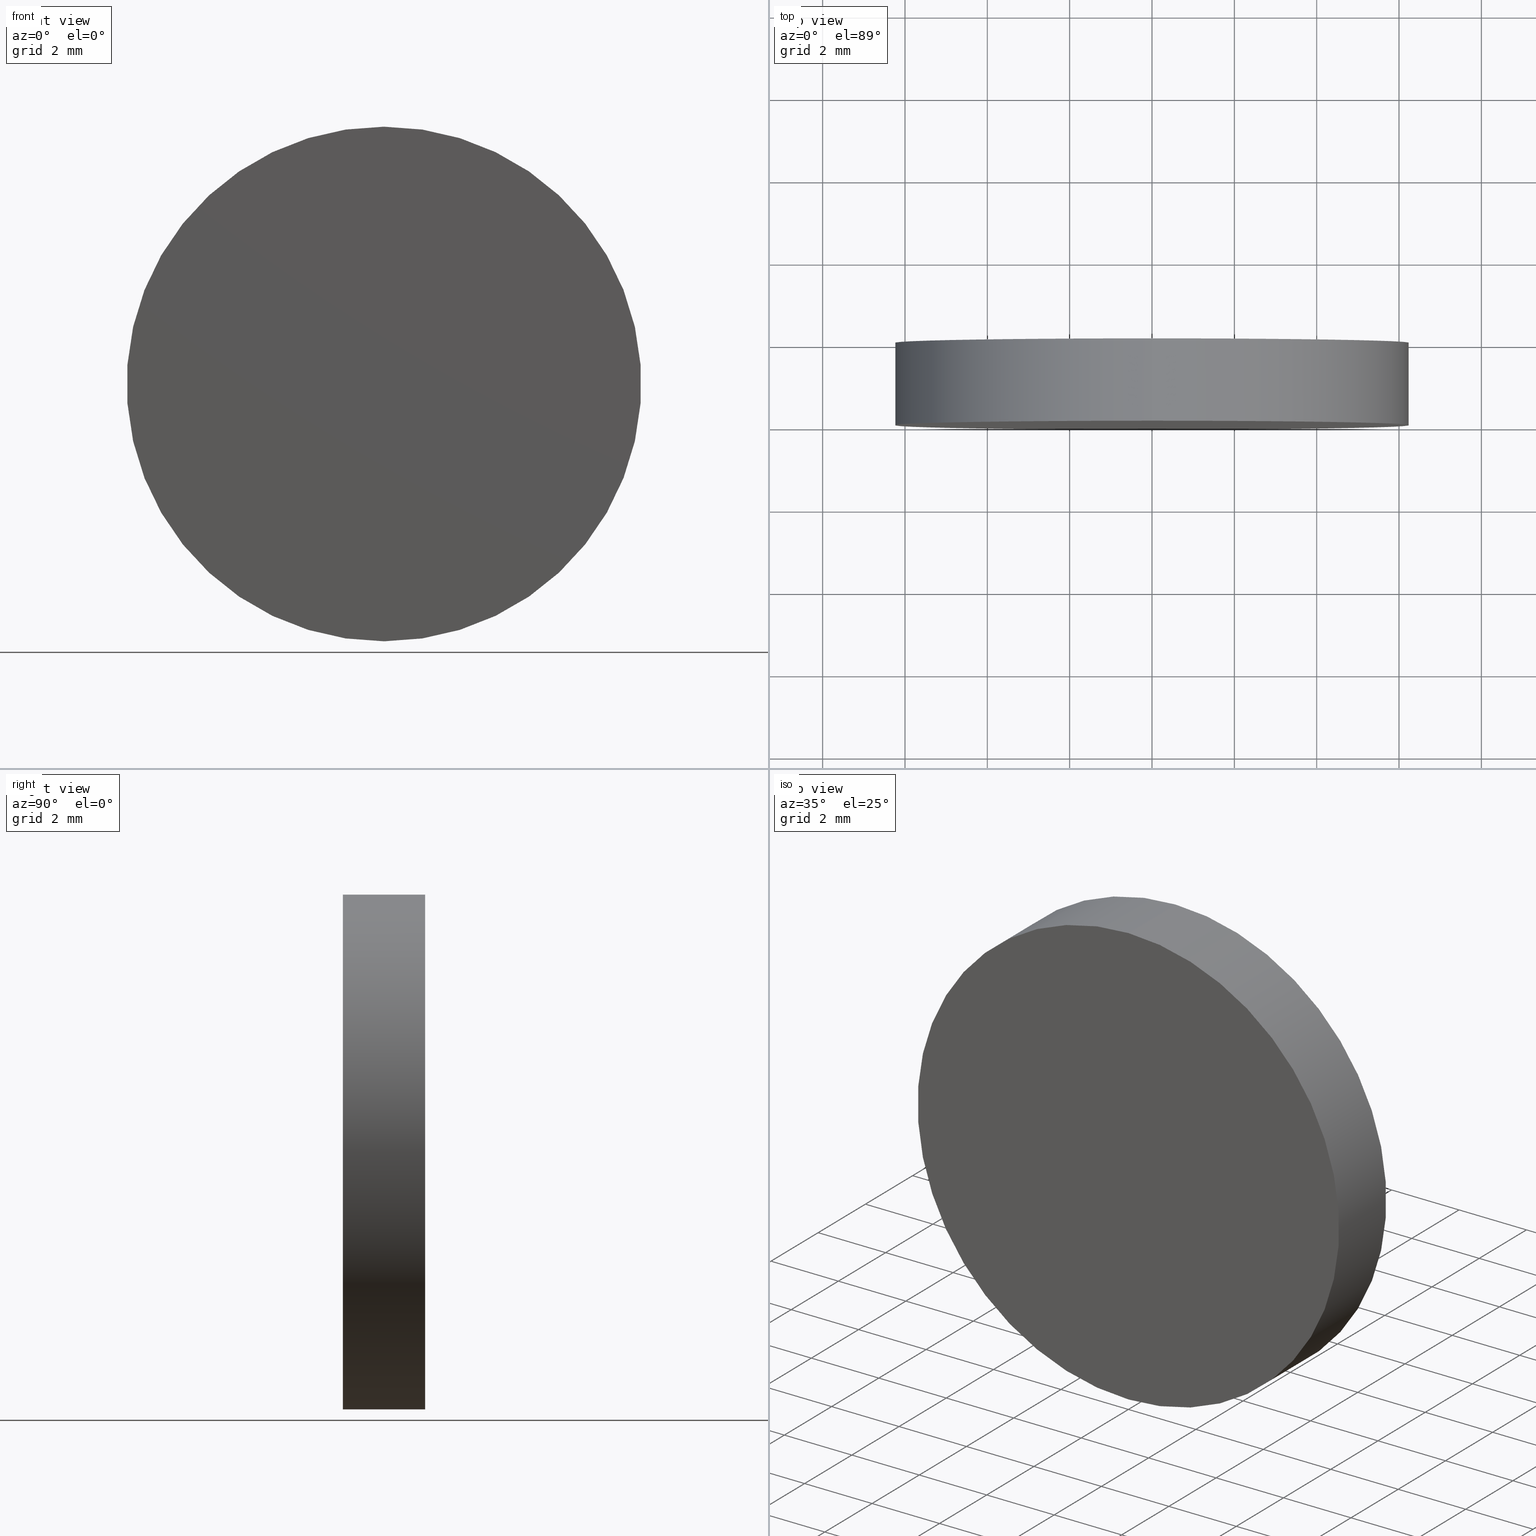
[diagram: canonical four-view strip — front | top / right | iso, engineering-drawing reading convention]
A machine part, canonical four-view strip (front | top / right | iso — engineering-drawing reading convention). The complete STEP part file that produces these views, byte-faithful:
ISO-10303-21;
HEADER;
FILE_DESCRIPTION (( 'STEP AP214' ),
    '1' );
FILE_NAME ('258509.STEP',
    '2019-08-07T02:05:03',
    ( 'user' ),
    ( '΢���й�' ),
    'SwSTEP 2.0',
    'SolidWorks 2016',
    '' );
FILE_SCHEMA (( 'AUTOMOTIVE_DESIGN' ));
ENDSEC;

DATA;
#1 = DIRECTION ( 'NONE',  ( 0.0000000000000000000, 0.0000000000000000000, 1.000000000000000000 ) ) ;
#2 = DIRECTION ( 'NONE',  ( 1.000000000000000000, 0.0000000000000000000, 0.0000000000000000000 ) ) ;
#3 = FILL_AREA_STYLE_COLOUR ( '', #130 ) ;
#4 = DIRECTION ( 'NONE',  ( 0.0000000000000000000, 0.0000000000000000000, -1.000000000000000000 ) ) ;
#5 = EDGE_CURVE ( 'NONE', #107, #90, #106, .T. ) ;
#6 = COLOUR_RGB ( '',1.000000000000000000, 1.000000000000000000, 1.000000000000000000 ) ;
#7 = ORIENTED_EDGE ( 'NONE', *, *, #23, .F. ) ;
#8 = AXIS2_PLACEMENT_3D ( 'NONE', #66, #132, #77 ) ;
#9 = DIRECTION ( 'NONE',  ( 0.0000000000000000000, 1.000000000000000000, 0.0000000000000000000 ) ) ;
#10 = VECTOR ( 'NONE', #128, 1000.000000000000000 ) ;
#11 = CARTESIAN_POINT ( 'NONE',  ( 0.0000000000000000000, 0.0000000000000000000, 0.0000000000000000000 ) ) ;
#12 = SURFACE_SIDE_STYLE ('',( #39 ) ) ;
#13 = DIRECTION ( 'NONE',  ( -0.0000000000000000000, -1.000000000000000000, -0.0000000000000000000 ) ) ;
#14 = EDGE_CURVE ( 'NONE', #90, #85, #54, .T. ) ;
#15 = PRODUCT_CONTEXT ( 'NONE', #67, 'mechanical' ) ;
#16 = FILL_AREA_STYLE ('',( #59 ) ) ;
#17 = CIRCLE ( 'NONE', #8, 6.250000000000000000 ) ;
#18 =( GEOMETRIC_REPRESENTATION_CONTEXT ( 3 ) GLOBAL_UNCERTAINTY_ASSIGNED_CONTEXT ( ( #101 ) ) GLOBAL_UNIT_ASSIGNED_CONTEXT ( ( #100, #60, #126 ) ) REPRESENTATION_CONTEXT ( 'NONE', 'WORKASPACE' ) );
#19 = CARTESIAN_POINT ( 'NONE',  ( 7.654042494670957600E-016, 2.000000000000000000, 6.250000000000000000 ) ) ;
#20 = AXIS2_PLACEMENT_3D ( 'NONE', #125, #1, #2 ) ;
#21 =( GEOMETRIC_REPRESENTATION_CONTEXT ( 3 ) GLOBAL_UNCERTAINTY_ASSIGNED_CONTEXT ( ( #80 ) ) GLOBAL_UNIT_ASSIGNED_CONTEXT ( ( #43, #48, #117 ) ) REPRESENTATION_CONTEXT ( 'NONE', 'WORKASPACE' ) );
#22 = PRODUCT_DEFINITION ( 'δ֪', '', #30, #26 ) ;
#23 = EDGE_CURVE ( 'NONE', #90, #107, #45, .T. ) ;
#24 = PLANE ( 'NONE',  #133 ) ;
#25 = ADVANCED_FACE ( 'NONE', ( #49 ), #56, .T. ) ;
#26 = PRODUCT_DEFINITION_CONTEXT ( 'detailed design', #31, 'design' ) ;
#27 = DIRECTION ( 'NONE',  ( 0.0000000000000000000, 1.000000000000000000, 0.0000000000000000000 ) ) ;
#28 = SURFACE_STYLE_USAGE ( .BOTH. , #12 ) ;
#29 = PRODUCT ( '258509', '258509', '', ( #15 ) ) ;
#30 = PRODUCT_DEFINITION_FORMATION_WITH_SPECIFIED_SOURCE ( '�κ�', '', #29, .NOT_KNOWN. ) ;
#31 = APPLICATION_CONTEXT ( 'automotive_design' ) ;
#32 = VECTOR ( 'NONE', #99, 1000.000000000000000 ) ;
#33 = DIRECTION ( 'NONE',  ( 0.0000000000000000000, 0.0000000000000000000, 1.000000000000000000 ) ) ;
#34 = DIRECTION ( 'NONE',  ( 0.0000000000000000000, 0.0000000000000000000, 1.000000000000000000 ) ) ;
#35 = EDGE_CURVE ( 'NONE', #55, #85, #110, .T. ) ;
#36 = DIRECTION ( 'NONE',  ( 0.0000000000000000000, 1.000000000000000000, 0.0000000000000000000 ) ) ;
#37 = FACE_OUTER_BOUND ( 'NONE', #50, .T. ) ;
#38 = ORIENTED_EDGE ( 'NONE', *, *, #82, .F. ) ;
#39 = SURFACE_STYLE_FILL_AREA ( #16 ) ;
#40 = AXIS2_PLACEMENT_3D ( 'NONE', #116, #9, #98 ) ;
#41 = MECHANICAL_DESIGN_GEOMETRIC_PRESENTATION_REPRESENTATION (  '', ( #71 ), #18 ) ;
#42 = CARTESIAN_POINT ( 'NONE',  ( 0.0000000000000000000, 2.000000000000000000, -6.250000000000000000 ) ) ;
#43 =( LENGTH_UNIT ( ) NAMED_UNIT ( * ) SI_UNIT ( .MILLI., .METRE. ) );
#44 = DIRECTION ( 'NONE',  ( 0.0000000000000000000, -0.0000000000000000000, 1.000000000000000000 ) ) ;
#45 = CIRCLE ( 'NONE', #87, 6.250000000000000000 ) ;
#46 = DIRECTION ( 'NONE',  ( 0.0000000000000000000, 0.0000000000000000000, -1.000000000000000000 ) ) ;
#47 = APPLICATION_PROTOCOL_DEFINITION ( 'draft international standard', 'automotive_design', 1998, #31 ) ;
#48 =( NAMED_UNIT ( * ) PLANE_ANGLE_UNIT ( ) SI_UNIT ( $, .RADIAN. ) );
#49 = FACE_OUTER_BOUND ( 'NONE', #69, .T. ) ;
#50 = EDGE_LOOP ( 'NONE', ( #124, #114 ) ) ;
#51 = CARTESIAN_POINT ( 'NONE',  ( 0.0000000000000000000, 2.000000000000000000, 0.0000000000000000000 ) ) ;
#52 = ADVANCED_BREP_SHAPE_REPRESENTATION ( '258509', ( #65, #20 ), #89 ) ;
#53 = AXIS2_PLACEMENT_3D ( 'NONE', #62, #36, #105 ) ;
#54 = LINE ( 'NONE', #113, #10 ) ;
#55 = VERTEX_POINT ( 'NONE', #104 ) ;
#56 = CYLINDRICAL_SURFACE ( 'NONE', #61, 6.250000000000000000 ) ;
#57 = ORIENTED_EDGE ( 'NONE', *, *, #14, .T. ) ;
#58 = CARTESIAN_POINT ( 'NONE',  ( 0.0000000000000000000, 0.0000000000000000000, -6.250000000000000000 ) ) ;
#59 = FILL_AREA_STYLE_COLOUR ( '', #6 ) ;
#60 =( NAMED_UNIT ( * ) PLANE_ANGLE_UNIT ( ) SI_UNIT ( $, .RADIAN. ) );
#61 = AXIS2_PLACEMENT_3D ( 'NONE', #119, #137, #4 ) ;
#62 = CARTESIAN_POINT ( 'NONE',  ( 0.0000000000000000000, 2.000000000000000000, 0.0000000000000000000 ) ) ;
#63 = MECHANICAL_DESIGN_GEOMETRIC_PRESENTATION_REPRESENTATION (  '', ( #73 ), #21 ) ;
#64 = ORIENTED_EDGE ( 'NONE', *, *, #5, .F. ) ;
#65 = MANIFOLD_SOLID_BREP ( '͹̨-����1', #72 ) ;
#66 = CARTESIAN_POINT ( 'NONE',  ( 0.0000000000000000000, 0.0000000000000000000, 0.0000000000000000000 ) ) ;
#67 = APPLICATION_CONTEXT ( 'automotive_design' ) ;
#68 = FACE_OUTER_BOUND ( 'NONE', #78, .T. ) ;
#69 = EDGE_LOOP ( 'NONE', ( #139, #7, #57, #131 ) ) ;
#70 = CARTESIAN_POINT ( 'NONE',  ( 0.0000000000000000000, 0.0000000000000000000, 0.0000000000000000000 ) ) ;
#71 = STYLED_ITEM ( 'NONE', ( #93 ), #52 ) ;
#72 = CLOSED_SHELL ( 'NONE', ( #122, #25, #75, #91 ) ) ;
#73 = STYLED_ITEM ( 'NONE', ( #88 ), #65 ) ;
#74 = EDGE_CURVE ( 'NONE', #107, #55, #138, .T. ) ;
#75 = ADVANCED_FACE ( 'NONE', ( #37 ), #92, .T. ) ;
#76 = PRESENTATION_LAYER_ASSIGNMENT (  '', '', ( #71 ) ) ;
#77 = DIRECTION ( 'NONE',  ( 0.0000000000000000000, 0.0000000000000000000, 1.000000000000000000 ) ) ;
#78 = EDGE_LOOP ( 'NONE', ( #38, #115 ) ) ;
#79 = SURFACE_SIDE_STYLE ('',( #84 ) ) ;
#80 = UNCERTAINTY_MEASURE_WITH_UNIT (LENGTH_MEASURE( 1.000000000000000100E-005 ), #43, 'distance_accuracy_value', 'NONE');
#81 = CARTESIAN_POINT ( 'NONE',  ( 7.654042494670957600E-016, 2.000000000000000000, 6.250000000000000000 ) ) ;
#82 = EDGE_CURVE ( 'NONE', #85, #55, #17, .T. ) ;
#83 = SURFACE_STYLE_USAGE ( .BOTH. , #79 ) ;
#84 = SURFACE_STYLE_FILL_AREA ( #136 ) ;
#85 = VERTEX_POINT ( 'NONE', #58 ) ;
#86 = PRODUCT_RELATED_PRODUCT_CATEGORY ( 'part', '', ( #29 ) ) ;
#87 = AXIS2_PLACEMENT_3D ( 'NONE', #51, #112, #34 ) ;
#88 = PRESENTATION_STYLE_ASSIGNMENT (( #83 ) ) ;
#89 =( GEOMETRIC_REPRESENTATION_CONTEXT ( 3 ) GLOBAL_UNCERTAINTY_ASSIGNED_CONTEXT ( ( #97 ) ) GLOBAL_UNIT_ASSIGNED_CONTEXT ( ( #123, #134, #140 ) ) REPRESENTATION_CONTEXT ( 'NONE', 'WORKASPACE' ) );
#90 = VERTEX_POINT ( 'NONE', #42 ) ;
#91 = ADVANCED_FACE ( 'NONE', ( #68 ), #24, .F. ) ;
#92 = PLANE ( 'NONE',  #40 ) ;
#93 = PRESENTATION_STYLE_ASSIGNMENT (( #28 ) ) ;
#94 = FACE_OUTER_BOUND ( 'NONE', #118, .T. ) ;
#95 = ORIENTED_EDGE ( 'NONE', *, *, #74, .T. ) ;
#96 = PRODUCT_DEFINITION_SHAPE ( 'NONE', 'NONE',  #22 ) ;
#97 = UNCERTAINTY_MEASURE_WITH_UNIT (LENGTH_MEASURE( 1.000000000000000100E-005 ), #123, 'distance_accuracy_value', 'NONE');
#98 = DIRECTION ( 'NONE',  ( 0.0000000000000000000, -0.0000000000000000000, 1.000000000000000000 ) ) ;
#99 = DIRECTION ( 'NONE',  ( -0.0000000000000000000, -1.000000000000000000, -0.0000000000000000000 ) ) ;
#100 =( LENGTH_UNIT ( ) NAMED_UNIT ( * ) SI_UNIT ( .MILLI., .METRE. ) );
#101 = UNCERTAINTY_MEASURE_WITH_UNIT (LENGTH_MEASURE( 1.000000000000000100E-005 ), #100, 'distance_accuracy_value', 'NONE');
#102 = ORIENTED_EDGE ( 'NONE', *, *, #35, .T. ) ;
#103 = DIRECTION ( 'NONE',  ( 0.0000000000000000000, 1.000000000000000000, 0.0000000000000000000 ) ) ;
#104 = CARTESIAN_POINT ( 'NONE',  ( 7.654042494670957600E-016, 0.0000000000000000000, 6.250000000000000000 ) ) ;
#105 = DIRECTION ( 'NONE',  ( 0.0000000000000000000, 0.0000000000000000000, 1.000000000000000000 ) ) ;
#106 = CIRCLE ( 'NONE', #53, 6.250000000000000000 ) ;
#107 = VERTEX_POINT ( 'NONE', #81 ) ;
#108 = AXIS2_PLACEMENT_3D ( 'NONE', #109, #13, #46 ) ;
#109 = CARTESIAN_POINT ( 'NONE',  ( 0.0000000000000000000, 2.000000000000000000, 0.0000000000000000000 ) ) ;
#110 = CIRCLE ( 'NONE', #120, 6.250000000000000000 ) ;
#111 = APPLICATION_PROTOCOL_DEFINITION ( 'draft international standard', 'automotive_design', 1998, #67 ) ;
#112 = DIRECTION ( 'NONE',  ( 0.0000000000000000000, 1.000000000000000000, 0.0000000000000000000 ) ) ;
#113 = CARTESIAN_POINT ( 'NONE',  ( 0.0000000000000000000, 2.000000000000000000, -6.250000000000000000 ) ) ;
#114 = ORIENTED_EDGE ( 'NONE', *, *, #5, .T. ) ;
#115 = ORIENTED_EDGE ( 'NONE', *, *, #35, .F. ) ;
#116 = CARTESIAN_POINT ( 'NONE',  ( 0.0000000000000000000, 2.000000000000000000, 0.0000000000000000000 ) ) ;
#117 =( NAMED_UNIT ( * ) SI_UNIT ( $, .STERADIAN. ) SOLID_ANGLE_UNIT ( ) );
#118 = EDGE_LOOP ( 'NONE', ( #64, #95, #102, #135 ) ) ;
#119 = CARTESIAN_POINT ( 'NONE',  ( 0.0000000000000000000, 2.000000000000000000, 0.0000000000000000000 ) ) ;
#120 = AXIS2_PLACEMENT_3D ( 'NONE', #70, #103, #33 ) ;
#121 = CYLINDRICAL_SURFACE ( 'NONE', #108, 6.250000000000000000 ) ;
#122 = ADVANCED_FACE ( 'NONE', ( #94 ), #121, .T. ) ;
#123 =( LENGTH_UNIT ( ) NAMED_UNIT ( * ) SI_UNIT ( .MILLI., .METRE. ) );
#124 = ORIENTED_EDGE ( 'NONE', *, *, #23, .T. ) ;
#125 = CARTESIAN_POINT ( 'NONE',  ( 0.0000000000000000000, 0.0000000000000000000, 0.0000000000000000000 ) ) ;
#126 =( NAMED_UNIT ( * ) SI_UNIT ( $, .STERADIAN. ) SOLID_ANGLE_UNIT ( ) );
#127 = PRESENTATION_LAYER_ASSIGNMENT (  '', '', ( #73 ) ) ;
#128 = DIRECTION ( 'NONE',  ( -0.0000000000000000000, -1.000000000000000000, -0.0000000000000000000 ) ) ;
#129 = SHAPE_DEFINITION_REPRESENTATION ( #96, #52 ) ;
#130 = COLOUR_RGB ( '',1.000000000000000000, 1.000000000000000000, 1.000000000000000000 ) ;
#131 = ORIENTED_EDGE ( 'NONE', *, *, #82, .T. ) ;
#132 = DIRECTION ( 'NONE',  ( 0.0000000000000000000, 1.000000000000000000, 0.0000000000000000000 ) ) ;
#133 = AXIS2_PLACEMENT_3D ( 'NONE', #11, #27, #44 ) ;
#134 =( NAMED_UNIT ( * ) PLANE_ANGLE_UNIT ( ) SI_UNIT ( $, .RADIAN. ) );
#135 = ORIENTED_EDGE ( 'NONE', *, *, #14, .F. ) ;
#136 = FILL_AREA_STYLE ('',( #3 ) ) ;
#137 = DIRECTION ( 'NONE',  ( -0.0000000000000000000, -1.000000000000000000, -0.0000000000000000000 ) ) ;
#138 = LINE ( 'NONE', #19, #32 ) ;
#139 = ORIENTED_EDGE ( 'NONE', *, *, #74, .F. ) ;
#140 =( NAMED_UNIT ( * ) SI_UNIT ( $, .STERADIAN. ) SOLID_ANGLE_UNIT ( ) );
ENDSEC;
END-ISO-10303-21;
